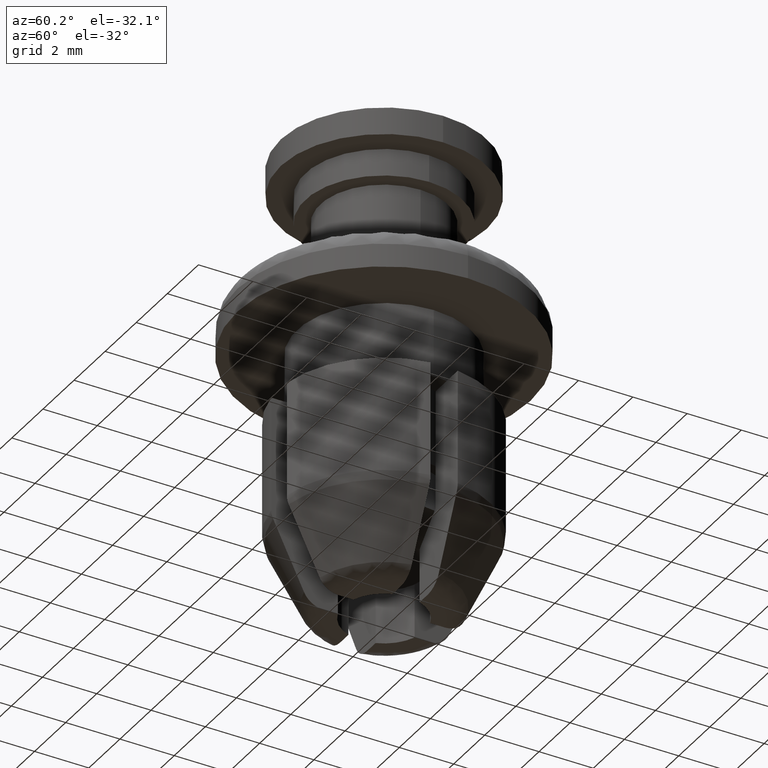
[diagram: clean part render]
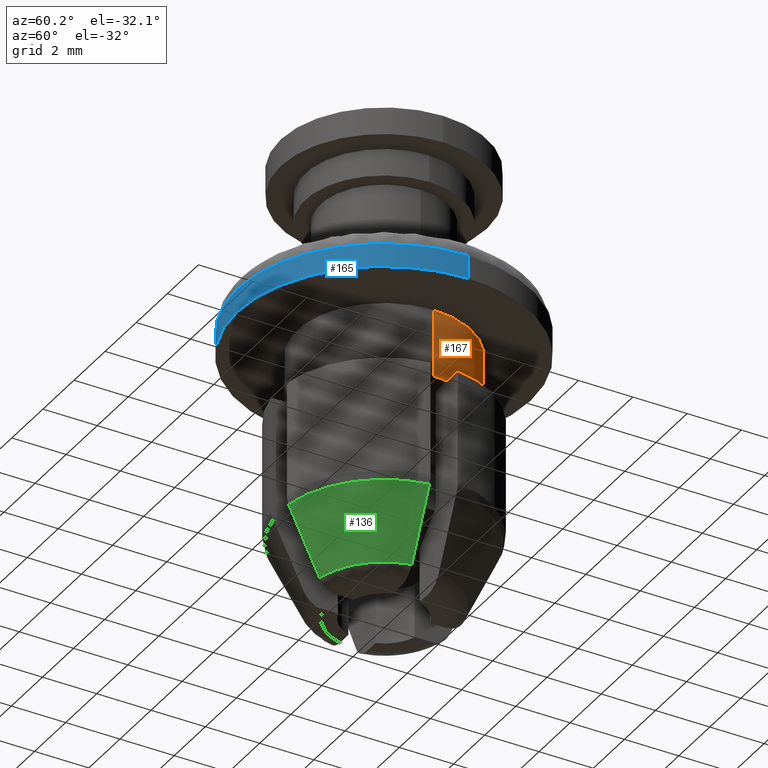
[diagram: same view with three faces highlighted in distinct colors, each labeled with its STEP entity id]
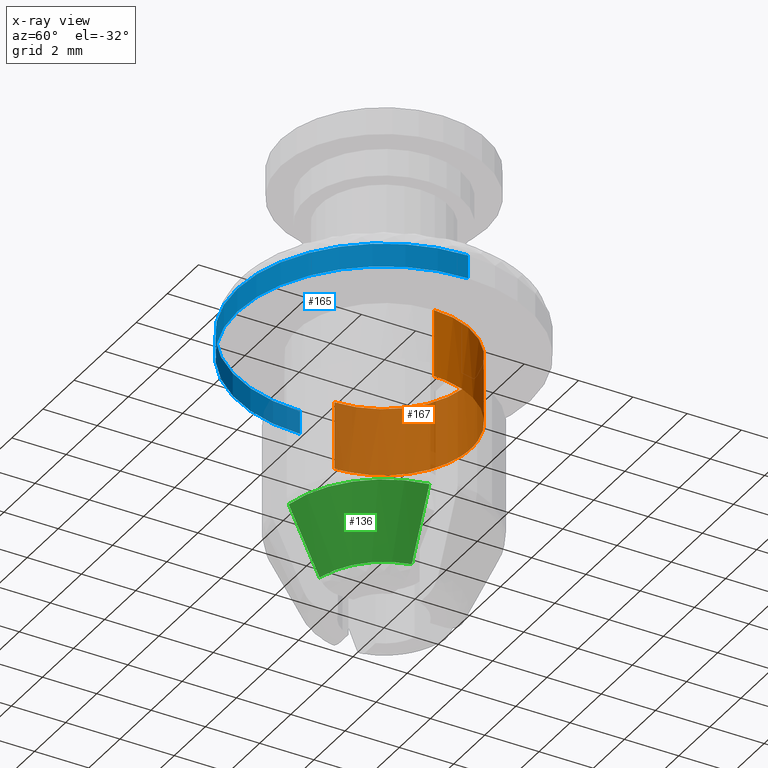
[diagram: x-ray of the same camera — body ghosted, the three highlighted faces saturated]
A machine part, auxiliary view with three faces highlighted in distinct colors.
The next image is the same camera in x-ray (body ghosted, the three faces saturated) — at least one of them is partly hidden behind the body in this view.
Their STEP definitions:

[orange] entity #167 — the highlighted cylindrical surface (partial cylindrical patch) has radius 3.2 mm, axis along (-0, -0, -1).
#167=ADVANCED_FACE('',(#744),#743,.T.);
#743=CYLINDRICAL_SURFACE('',#1401,3.20000000000E+00);
#744=FACE_OUTER_BOUND('',#1402,.T.);
#1398=CARTESIAN_POINT('',(-1.97215226305E-31,0.00000000000E+00,-1.00200000000E+03));
#1399=DIRECTION('',(-0.00000000000E+00,-0.00000000000E+00,-1.00000000000E+00));
#1400=DIRECTION('',(1.00000000000E+00,1.22464679915E-16,0.00000000000E+00));
#1401=AXIS2_PLACEMENT_3D('',#1398,#1399,#1400);
#1402=EDGE_LOOP('',(#1850,#1851,#1852,#1853,#1854,#1855,#1856,#1857));
#1850=ORIENTED_EDGE('',*,*,#2028,.F.);
#1851=ORIENTED_EDGE('',*,*,#2094,.T.);
#1852=ORIENTED_EDGE('',*,*,#2019,.T.);
#1853=ORIENTED_EDGE('',*,*,#2061,.T.);
#1854=ORIENTED_EDGE('',*,*,#2078,.T.);
#1855=ORIENTED_EDGE('',*,*,#2060,.T.);
#1856=ORIENTED_EDGE('',*,*,#2013,.T.);
#1857=ORIENTED_EDGE('',*,*,#2095,.F.);
#2013=EDGE_CURVE('',#2567,#2596,#2603,.T.);
#2019=EDGE_CURVE('',#2642,#2501,#2643,.T.);
#2028=EDGE_CURVE('',#2698,#2697,#2705,.T.);
#2060=EDGE_CURVE('',#2890,#2567,#2911,.T.);
#2061=EDGE_CURVE('',#2501,#2871,#2917,.T.);
#2078=EDGE_CURVE('',#2871,#2890,#3024,.T.);
#2094=EDGE_CURVE('',#2698,#2642,#3124,.T.);
#2095=EDGE_CURVE('',#2697,#2596,#3130,.T.);
#2501=VERTEX_POINT('',#3681);
#2567=VERTEX_POINT('',#3726);
#2596=VERTEX_POINT('',#3745);
#2603=CIRCLE('',#3753,3.20000000000E+00);
#2642=VERTEX_POINT('',#3776);
#2643=CIRCLE('',#3780,3.20000000000E+00);
#2697=VERTEX_POINT('',#3815);
#2698=VERTEX_POINT('',#3816);
#2705=CIRCLE('',#3824,3.20000000000E+00);
#2871=VERTEX_POINT('',#3942);
#2890=VERTEX_POINT('',#3952);
#2911=CIRCLE('',#3968,3.20000000000E+00);
#2917=CIRCLE('',#3972,3.20000000000E+00);
#3024=CIRCLE('',#4036,3.20000000000E+00);
#3124=(BOUNDED_CURVE() B_SPLINE_CURVE(1,(#4087,#4088),.UNSPECIFIED.,.F.,.F.) B_SPLINE_CURVE_WITH_KNOTS((2,2),(8.33333233997E-02,9.16666663280E-01),.UNSPECIFIED.) CURVE() GEOMETRIC_REPRESENTATION_ITEM() RATIONAL_B_SPLINE_CURVE((1.00000000000E+00,1.00000000000E+00)) REPRESENTATION_ITEM('') );
#3130=(BOUNDED_CURVE() B_SPLINE_CURVE(1,(#4089,#4090),.UNSPECIFIED.,.F.,.F.) B_SPLINE_CURVE_WITH_KNOTS((2,2),(8.33333333333E-02,9.16666666667E-01),.UNSPECIFIED.) CURVE() GEOMETRIC_REPRESENTATION_ITEM() RATIONAL_B_SPLINE_CURVE((7.50000000000E-01,7.50000000000E-01)) REPRESENTATION_ITEM('') );
#3681=CARTESIAN_POINT('',(3.16069612586E+00,5.00000000000E-01,-4.50000000000E+00));
#3726=CARTESIAN_POINT('',(-3.16069612586E+00,5.00000000000E-01,-4.50000000000E+00));
#3745=CARTESIAN_POINT('',(-3.20000000000E+00,3.19635721813E-06,-4.50000000000E+00));
#3750=CARTESIAN_POINT('',(-1.97215226305E-31,0.00000000000E+00,-4.50000000000E+00));
#3751=DIRECTION('',(0.00000000000E+00,0.00000000000E+00,1.00000000000E+00));
#3752=DIRECTION('',(-9.87717539330E-01,1.56250000000E-01,-0.00000000000E+00));
#3753=AXIS2_PLACEMENT_3D('',#3750,#3751,#3752);
#3776=CARTESIAN_POINT('',(3.20000000000E+00,-3.77015610515E-16,-4.50000000000E+00));
#3777=CARTESIAN_POINT('',(-1.97215226305E-31,0.00000000000E+00,-4.50000000000E+00));
#3778=DIRECTION('',(-0.00000000000E+00,0.00000000000E+00,1.00000000000E+00));
#3779=DIRECTION('',(-1.00000000000E+00,-0.00000000000E+00,-0.00000000000E+00));
#3780=AXIS2_PLACEMENT_3D('',#3777,#3778,#3779);
#3815=CARTESIAN_POINT('',(-3.20000000000E+00,0.00000000000E+00,-2.00000000000E+00));
#3816=CARTESIAN_POINT('',(3.20000000000E+00,4.44089209850E-16,-2.00000000000E+00));
#3821=CARTESIAN_POINT('',(-1.97215226305E-31,0.00000000000E+00,-2.00000000000E+00));
#3822=DIRECTION('',(0.00000000000E+00,0.00000000000E+00,1.00000000000E+00));
#3823=DIRECTION('',(-1.00000000000E+00,-1.22460635382E-16,0.00000000000E+00));
#3824=AXIS2_PLACEMENT_3D('',#3821,#3822,#3823);
#3942=CARTESIAN_POINT('',(5.00000000000E-01,3.16069612586E+00,-4.50000000000E+00));
#3952=CARTESIAN_POINT('',(-5.00000000000E-01,3.16069612586E+00,-4.50000000000E+00));
#3965=CARTESIAN_POINT('',(-1.97215226305E-31,0.00000000000E+00,-4.50000000000E+00));
#3966=DIRECTION('',(0.00000000000E+00,-0.00000000000E+00,1.00000000000E+00));
#3967=DIRECTION('',(1.00000000000E+00,-0.00000000000E+00,-0.00000000000E+00));
#3968=AXIS2_PLACEMENT_3D('',#3965,#3966,#3967);
#3969=CARTESIAN_POINT('',(-1.97215226305E-31,0.00000000000E+00,-4.50000000000E+00));
#3970=DIRECTION('',(0.00000000000E+00,-0.00000000000E+00,1.00000000000E+00));
#3971=DIRECTION('',(1.00000000000E+00,-0.00000000000E+00,-0.00000000000E+00));
#3972=AXIS2_PLACEMENT_3D('',#3969,#3970,#3971);
#4033=CARTESIAN_POINT('',(-1.97215226305E-31,0.00000000000E+00,-4.50000000000E+00));
#4034=DIRECTION('',(-0.00000000000E+00,0.00000000000E+00,1.00000000000E+00));
#4035=DIRECTION('',(-1.00000000000E+00,-0.00000000000E+00,-0.00000000000E+00));
#4036=AXIS2_PLACEMENT_3D('',#4033,#4034,#4035);
#4087=CARTESIAN_POINT('',(3.20000000000E+00,3.91886975727E-16,-1.99999997020E+00));
#4088=CARTESIAN_POINT('',(3.20000000000E+00,3.91886975727E-16,-4.49999998984E+00));
#4089=CARTESIAN_POINT('',(-3.20000000000E+00,-2.96059473233E-16,-2.00000000000E+00));
#4090=CARTESIAN_POINT('',(-3.20000000000E+00,-2.96059473233E-16,-4.50000000000E+00));

[blue] entity #165 — the highlighted cylindrical surface (partial cylindrical patch) has radius 5.4 mm, axis along (0, 0, 1).
#165=ADVANCED_FACE('',(#724),#723,.T.);
#723=CYLINDRICAL_SURFACE('',#1391,5.40000000000E+00);
#724=FACE_OUTER_BOUND('',#1392,.T.);
#1388=CARTESIAN_POINT('',(0.00000000000E+00,0.00000000000E+00,0.00000000000E+00));
#1389=DIRECTION('',(-0.00000000000E+00,-0.00000000000E+00,1.00000000000E+00));
#1390=DIRECTION('',(1.00000000000E+00,0.00000000000E+00,0.00000000000E+00));
#1391=AXIS2_PLACEMENT_3D('',#1388,#1389,#1390);
#1392=EDGE_LOOP('',(#1838,#1839,#1840,#1841));
#1838=ORIENTED_EDGE('',*,*,#2026,.F.);
#1839=ORIENTED_EDGE('',*,*,#2092,.T.);
#1840=ORIENTED_EDGE('',*,*,#2088,.T.);
#1841=ORIENTED_EDGE('',*,*,#2093,.F.);
#2026=EDGE_CURVE('',#2684,#2683,#2691,.T.);
#2088=EDGE_CURVE('',#3086,#3087,#3088,.T.);
#2092=EDGE_CURVE('',#2684,#3086,#3112,.T.);
#2093=EDGE_CURVE('',#2683,#3087,#3118,.T.);
#2683=VERTEX_POINT('',#3805);
#2684=VERTEX_POINT('',#3806);
#2691=CIRCLE('',#3814,5.40000000000E+00);
#3086=VERTEX_POINT('',#4067);
#3087=VERTEX_POINT('',#4068);
#3088=CIRCLE('',#4072,5.40000000000E+00);
#3112=(BOUNDED_CURVE() B_SPLINE_CURVE(1,(#4083,#4084),.UNSPECIFIED.,.F.,.F.) B_SPLINE_CURVE_WITH_KNOTS((2,2),(8.33332935974E-02,9.16666633252E-01),.UNSPECIFIED.) CURVE() GEOMETRIC_REPRESENTATION_ITEM() RATIONAL_B_SPLINE_CURVE((1.00000000000E+00,1.00000000000E+00)) REPRESENTATION_ITEM('') );
#3118=(BOUNDED_CURVE() B_SPLINE_CURVE(1,(#4085,#4086),.UNSPECIFIED.,.F.,.F.) B_SPLINE_CURVE_WITH_KNOTS((2,2),(8.33333333333E-02,9.16666666667E-01),.UNSPECIFIED.) CURVE() GEOMETRIC_REPRESENTATION_ITEM() RATIONAL_B_SPLINE_CURVE((7.50000000000E-01,7.50000000000E-01)) REPRESENTATION_ITEM('') );
#3805=CARTESIAN_POINT('',(-5.40000000000E+00,0.00000000000E+00,-2.00000000000E+00));
#3806=CARTESIAN_POINT('',(5.40000000000E+00,2.96059473233E-16,-2.00000000000E+00));
#3811=CARTESIAN_POINT('',(0.00000000000E+00,0.00000000000E+00,-2.00000000000E+00));
#3812=DIRECTION('',(-0.00000000000E+00,0.00000000000E+00,-1.00000000000E+00));
#3813=DIRECTION('',(-1.00000000000E+00,-1.22460635382E-16,0.00000000000E+00));
#3814=AXIS2_PLACEMENT_3D('',#3811,#3812,#3813);
#4067=CARTESIAN_POINT('',(5.40000000000E+00,2.96059473233E-16,-1.13900000000E+00));
#4068=CARTESIAN_POINT('',(-5.40000000000E+00,0.00000000000E+00,-1.13900000000E+00));
#4069=CARTESIAN_POINT('',(0.00000000000E+00,0.00000000000E+00,-1.13900000000E+00));
#4070=DIRECTION('',(-0.00000000000E+00,0.00000000000E+00,-1.00000000000E+00));
#4071=DIRECTION('',(-1.00000000000E+00,-1.22460635382E-16,0.00000000000E+00));
#4072=AXIS2_PLACEMENT_3D('',#4069,#4070,#4071);
#4083=CARTESIAN_POINT('',(5.40000000000E+00,0.00000000000E+00,-2.00000004106E+00));
#4084=CARTESIAN_POINT('',(5.40000000000E+00,0.00000000000E+00,-1.13900003452E+00));
#4085=CARTESIAN_POINT('',(-5.40000000000E+00,-2.96059473233E-16,-2.00000000000E+00));
#4086=CARTESIAN_POINT('',(-5.40000000000E+00,-2.96059473233E-16,-1.13900000000E+00));

[green] entity #136 — the highlighted face is a freeform B-spline surface patch.
#136=ADVANCED_FACE('',(#434),#433,.T.);
#433=( BOUNDED_SURFACE() B_SPLINE_SURFACE( 2,1,((#1166,#1167),(#1168,#1169),(#1170,#1171)), .UNSPECIFIED.,.F.,.F.,.F.) B_SPLINE_SURFACE_WITH_KNOTS((3,3),(2,2),(0.00000000000E+00,1.00000000000E+00),(0.00000000000E+00,1.00000000000E+00), .UNSPECIFIED. ) GEOMETRIC_REPRESENTATION_ITEM() RATIONAL_B_SPLINE_SURFACE(((1.00000000000E+00,1.00000000000E+00),(7.93286915379E-01,7.93286915379E-01),(1.00000000000E+00,1.00000000000E+00))) REPRESENTATION_ITEM('') SURFACE() );
#434=FACE_OUTER_BOUND('',#1172,.T.);
#1166=CARTESIAN_POINT('',(3.52884453567E-01,-2.68268514906E+00,-1.14592680097E+01));
#1167=CARTESIAN_POINT('',(4.99491361261E-01,-3.79721476363E+00,-9.05051617755E+00));
#1168=CARTESIAN_POINT('',(2.41184624663E+00,-2.41184620714E+00,-1.14592680097E+01));
#1169=CARTESIAN_POINT('',(3.41385502452E+00,-3.41385496862E+00,-9.05051617755E+00));
#1170=CARTESIAN_POINT('',(2.68268515484E+00,-3.52884409643E-01,-1.14592680097E+01));
#1171=CARTESIAN_POINT('',(3.79721477180E+00,-4.99491299089E-01,-9.05051617755E+00));
#1172=EDGE_LOOP('',(#1676,#1677,#1678,#1679));
#1676=ORIENTED_EDGE('',*,*,#2043,.F.);
#1677=ORIENTED_EDGE('',*,*,#2031,.F.);
#1678=ORIENTED_EDGE('',*,*,#1956,.F.);
#1679=ORIENTED_EDGE('',*,*,#2040,.T.);
#1956=EDGE_CURVE('',#2204,#2211,#2212,.T.);
#2031=EDGE_CURVE('',#2211,#2712,#2725,.T.);
#2040=EDGE_CURVE('',#2204,#2777,#2784,.T.);
#2043=EDGE_CURVE('',#2712,#2777,#2802,.T.);
#2204=VERTEX_POINT('',#3469);
#2211=VERTEX_POINT('',#3476);
#2212=(BOUNDED_CURVE() B_SPLINE_CURVE(3,(#3477,#3478,#3479,#3480),.UNSPECIFIED.,.F.,.F.) B_SPLINE_CURVE_WITH_KNOTS((4,4),(5.32152075698E-03,7.98447049075E-03),.UNSPECIFIED.) CURVE() GEOMETRIC_REPRESENTATION_ITEM() RATIONAL_B_SPLINE_CURVE((1.00000000000E+00,1.00000000000E+00,1.00000000000E+00,1.00000000000E+00)) REPRESENTATION_ITEM('') );
#2712=VERTEX_POINT('',#3826);
#2725=CIRCLE('',#3840,2.70602087899E+00);
#2777=VERTEX_POINT('',#3879);
#2784=CIRCLE('',#3889,3.82970000000E+00);
#2802=(BOUNDED_CURVE() B_SPLINE_CURVE(3,(#3898,#3899,#3900,#3901),.UNSPECIFIED.,.F.,.F.) B_SPLINE_CURVE_WITH_KNOTS((4,4),(3.45102029413E-03,6.11390777930E-03),.UNSPECIFIED.) CURVE() GEOMETRIC_REPRESENTATION_ITEM() RATIONAL_B_SPLINE_CURVE((1.00000000000E+00,1.00000000000E+00,1.00000000000E+00,1.00000000000E+00)) REPRESENTATION_ITEM('') );
#3469=CARTESIAN_POINT('',(3.79692007949E+00,-5.00000000000E-01,-9.05100000000E+00));
#3476=CARTESIAN_POINT('',(2.65942644146E+00,-5.00000000000E-01,-1.14587841873E+01));
#3477=CARTESIAN_POINT('',(3.79692007949E+00,-5.00000000000E-01,-9.05100000000E+00));
#3478=CARTESIAN_POINT('',(3.41887801935E+00,-5.00000000000E-01,-9.85412300996E+00));
#3479=CARTESIAN_POINT('',(3.04019102778E+00,-5.00000000000E-01,-1.06569424928E+01));
#3480=CARTESIAN_POINT('',(2.65942644146E+00,-5.00000000000E-01,-1.14587841873E+01));
#3826=CARTESIAN_POINT('',(5.00000000000E-01,-2.65942644146E+00,-1.14587841873E+01));
#3837=CARTESIAN_POINT('',(0.00000000000E+00,0.00000000000E+00,-1.14587841873E+01));
#3838=DIRECTION('',(0.00000000000E+00,0.00000000000E+00,-1.00000000000E+00));
#3839=DIRECTION('',(1.00000000000E+00,-0.00000000000E+00,-0.00000000000E+00));
#3840=AXIS2_PLACEMENT_3D('',#3837,#3838,#3839);
#3879=CARTESIAN_POINT('',(5.00000000000E-01,-3.79692007949E+00,-9.05100000000E+00));
#3886=CARTESIAN_POINT('',(0.00000000000E+00,0.00000000000E+00,-9.05100000000E+00));
#3887=DIRECTION('',(0.00000000000E+00,0.00000000000E+00,-1.00000000000E+00));
#3888=DIRECTION('',(1.00000000000E+00,-0.00000000000E+00,-0.00000000000E+00));
#3889=AXIS2_PLACEMENT_3D('',#3886,#3887,#3888);
#3898=CARTESIAN_POINT('',(5.00000000000E-01,-2.65942644146E+00,-1.14587841873E+01));
#3899=CARTESIAN_POINT('',(5.00000000000E-01,-3.04018866588E+00,-1.06569474666E+01));
#3900=CARTESIAN_POINT('',(5.00000000000E-01,-3.41887760360E+00,-9.85412389320E+00));
#3901=CARTESIAN_POINT('',(5.00000000000E-01,-3.79692007949E+00,-9.05100000000E+00));